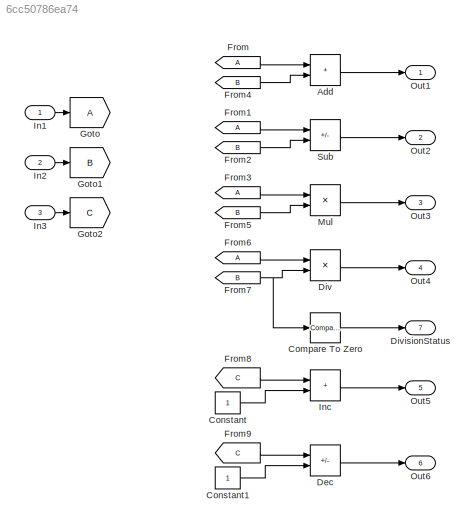
MODEL slx_6cc50786ea74
KIND model
CONFIG AbsTol = auto
CONFIG EnableMultiTasking = off
CONFIG FixedStep = auto
CONFIG MaxStep = auto
CONFIG MinStep = auto
CONFIG RelTol = 1e-3
CONFIG SampleTimeConstraint = Unconstrained
CONFIG SolverName = FixedStepDiscrete
CONFIG StartTime = 0.0
CONFIG StopTime = 10.0
BLOCK [Sum] Add
  IconShape = rectangular
  Ports = [2, 1]
BLOCK [Reference] Compare To Zero  REF=simulink/Logic and Bit
Operations/Compare
To Zero
  Ports = [1, 1]
  SourceBlock = simulink/Logic and Bit\nOperations/Compare\nTo Zero
  SourceProductBaseCode = SL
  SourceType = Compare To Zero
BLOCK [Constant] Constant
BLOCK [Constant] Constant1
BLOCK [Sum] Dec
  IconShape = rectangular
  Inputs = +-
  Ports = [2, 1]
BLOCK [Product] Div
  Inputs = */
  Ports = [2, 1]
BLOCK [Outport] DivisionStatus
  Port = 7
BLOCK [From] From
BLOCK [From] From1
BLOCK [From] From2
  GotoTag = B
BLOCK [From] From3
BLOCK [From] From4
  GotoTag = B
BLOCK [From] From5
  GotoTag = B
BLOCK [From] From6
BLOCK [From] From7
  GotoTag = B
BLOCK [From] From8
  GotoTag = C
BLOCK [From] From9
  GotoTag = C
BLOCK [Goto] Goto
BLOCK [Goto] Goto1
  GotoTag = B
BLOCK [Goto] Goto2
  GotoTag = C
BLOCK [Inport] In1
  OutDataTypeStr = double
BLOCK [Inport] In2
  OutDataTypeStr = double
  Port = 2
BLOCK [Inport] In3
  OutDataTypeStr = double
  Port = 3
BLOCK [Sum] Inc
  IconShape = rectangular
  Ports = [2, 1]
BLOCK [Product] Mul
  Inputs = **
  Ports = [2, 1]
BLOCK [Outport] Out1
BLOCK [Outport] Out2
  Port = 2
BLOCK [Outport] Out3
  Port = 3
BLOCK [Outport] Out4
  Port = 4
BLOCK [Outport] Out5
  Port = 5
BLOCK [Outport] Out6
  Port = 6
BLOCK [Sum] Sub
  IconShape = rectangular
  Inputs = +-
  Ports = [2, 1]
LINE Add:1 -> Out1:1
LINE Compare To Zero:1 -> DivisionStatus:1
LINE Constant1:1 -> Dec:2
LINE Constant:1 -> Inc:2
LINE Dec:1 -> Out6:1
LINE Div:1 -> Out4:1
LINE From1:1 -> Sub:1
LINE From2:1 -> Sub:2
LINE From3:1 -> Mul:1
LINE From4:1 -> Add:2
LINE From5:1 -> Mul:2
LINE From6:1 -> Div:1
NET From7:1 -> Compare To Zero:1, Div:2
LINE From8:1 -> Inc:1
LINE From9:1 -> Dec:1
LINE From:1 -> Add:1
LINE In1:1 -> Goto:1
LINE In2:1 -> Goto1:1
LINE In3:1 -> Goto2:1
LINE Inc:1 -> Out5:1
LINE Mul:1 -> Out3:1
LINE Sub:1 -> Out2:1
note: NET lines group one-source signal fan-out (src -> all destinations, sorted); 1:1 wires keep LINE
